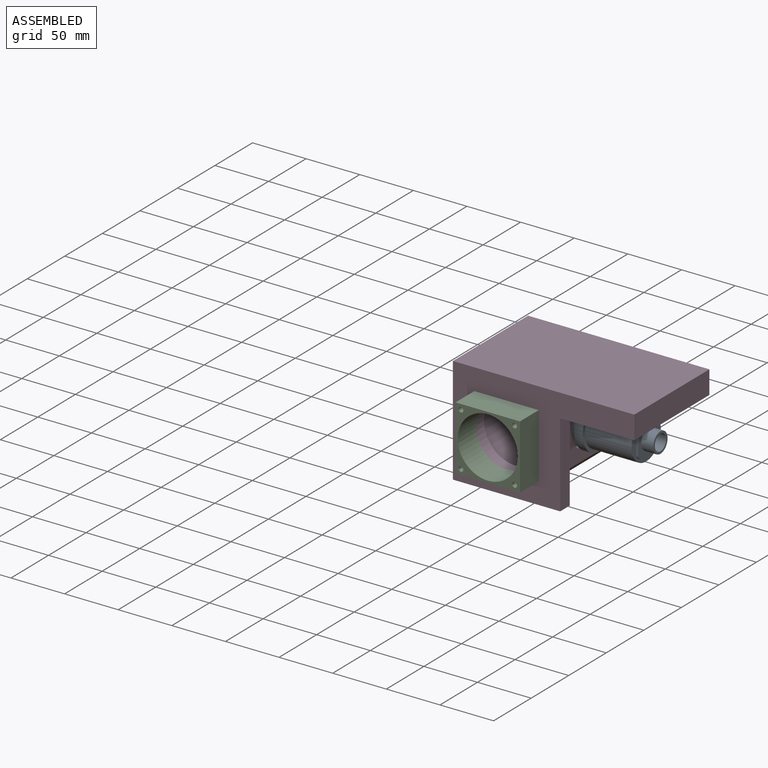
[diagram: assembled view]
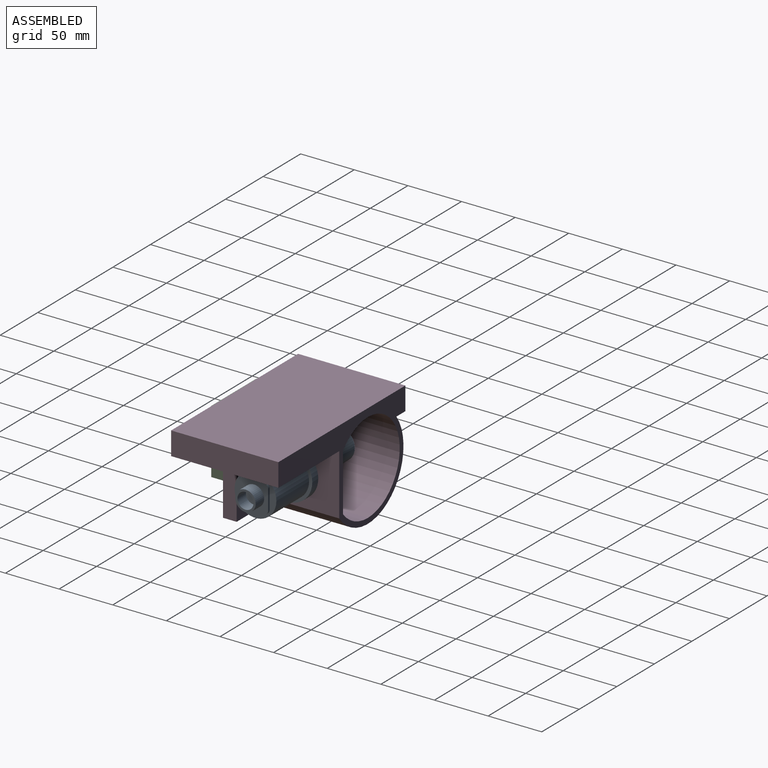
[diagram: assembled view, second angle]
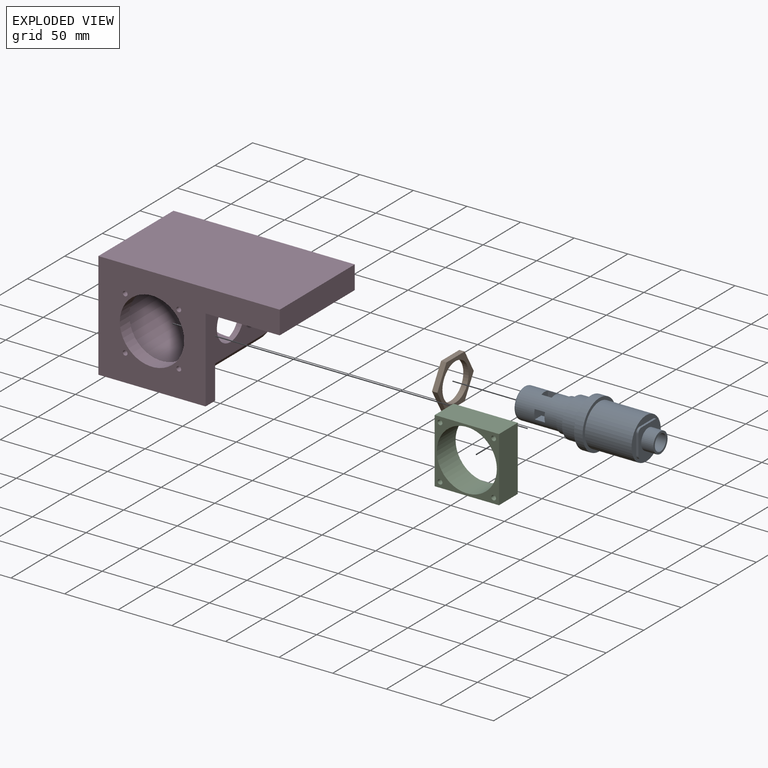
[diagram: exploded view]
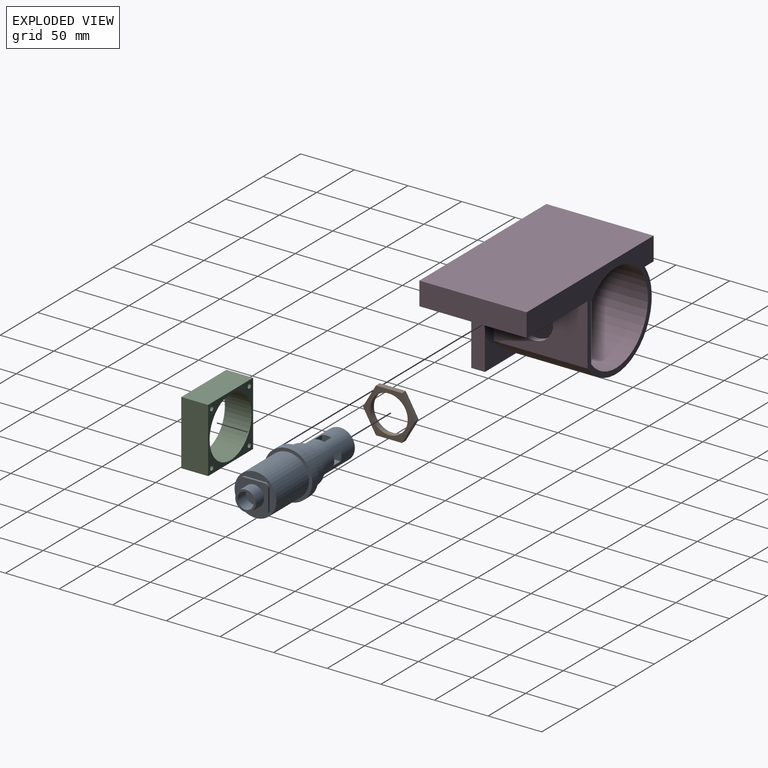
[diagram: exploded view, second angle]
ASSEMBLY  parts=4 mates=3
PART A: 35 faces, bbox 45x45x127.2 mm
  f0: plane 39x39mm, normal (0,0,-1), area 510.7mm2, adj f4,f22,f23,f24,f25,f26,f27,f28
  f1: plane 9.6x8.79mm, normal (0,1,0), area 84.3mm2, adj f3,f15,f17,f21
  f2: plane 9.6x8.79mm, normal (0,-1,0), area 84.3mm2, adj f3,f15,f17,f18
  f3: cylinder r=13.9mm len=38.5mm, axis (0,0,-1), area 3018.6mm2, adj f1,f2,f11,f13,f14,f15,f16,f17
  f4: cylinder r=19.5mm len=43.5mm, axis (0,0,1), area 5329.7mm2, adj f0,f7
  f5: cylinder r=22.5mm len=45mm, axis (0,0,-1), area 1131mm2, adj f6,f7
  f6: plane 45x45mm, normal (0,0,1), area 572.6mm2, adj f5,f8
  f7: plane 45x45mm, normal (0,0,-1), area 395.8mm2, adj f4,f5
  f8: cylinder r=18mm len=36mm, axis (0,0,-1), area 1617.3mm2, adj f6,f9
  f9: plane 36x36mm, normal (0,0,1), area 311mm2, adj f8,f10
  f10: cylinder r=15mm len=30mm, axis (0,0,-1), area 716.3mm2, adj f9,f11
  f11: plane 30x30mm, normal (0,0,1), area 99.9mm2, adj f3,f10
  f12: plane 23.8x23.8mm, normal (0,0,1), area 444.9mm2, adj f13
  f13: torus R=11.9mm, axis (0,0,1), area 260mm2, adj f3,f12
  f14: plane 9.6x8.79mm, normal (0,1,0), area 84.3mm2, adj f3,f15,f17,f20
  f15: plane 27.8x27.8mm, normal (0,0,1), area 403.5mm2, adj f1,f2,f3,f14,f16,f18,f19,f20
  f16: plane 9.6x8.79mm, normal (0,-1,0), area 84.3mm2, adj f3,f15,f17,f19
  f17: plane 27.8x27.8mm, normal (0,0,-1), area 403.5mm2, adj f1,f2,f3,f14,f16,f18,f19,f20
  f18: plane 9.6x8.79mm, normal (1,0,0), area 84.3mm2, adj f2,f3,f15,f17
  f19: plane 9.6x8.79mm, normal (-1,0,0), area 84.3mm2, adj f3,f15,f16,f17
  f20: plane 9.6x8.79mm, normal (-1,0,0), area 84.3mm2, adj f3,f14,f15,f17
  f21: plane 9.6x8.79mm, normal (1,0,0), area 84.3mm2, adj f1,f3,f15,f17
  f22: plane 18.6x2mm, normal (0,1,0), area 37.2mm2, adj f0,f23,f29,f30
  f23: cylinder r=3.9mm len=3.9mm, axis (0,0,1), area 12.3mm2, adj f0,f22,f24,f30
  f24: plane 18.6x2mm, normal (1,0,0), area 37.2mm2, adj f0,f23,f25,f30
  f25: cylinder r=3.9mm len=3.9mm, axis (0,0,1), area 12.3mm2, adj f0,f24,f26,f30
  f26: plane 18.6x2mm, normal (0,-1,0), area 37.2mm2, adj f0,f25,f27,f30
  f27: cylinder r=3.9mm len=3.9mm, axis (0,0,1), area 12.3mm2, adj f0,f26,f28,f30
  f28: plane 18.6x2mm, normal (-1,0,0), area 37.2mm2, adj f0,f27,f29,f30
  f29: cylinder r=3.9mm len=3.9mm, axis (0,0,1), area 12.3mm2, adj f0,f22,f28,f30
  f30: plane 26.4x26.4mm, normal (0,0,-1), area 400.4mm2, adj f22,f23,f24,f25,f26,f27,f28,f29
  f31: cylinder r=7.5mm len=15mm, axis (0,0,1), area 532.5mm2, adj f33,f34
  f32: cylinder r=9.5mm len=19mm, axis (0,0,1), area 674.5mm2, adj f30,f33
  f33: plane 19x19mm, normal (0,0,-1), area 106.8mm2, adj f31,f32
  f34: plane 15x15mm, normal (0,0,-1), area 176.7mm2, adj f31
PART B: 9 faces, bbox 42x5x48.5 mm
  f0: plane 21x12.12mm, normal (0.5,0,0.87), area 121.2mm2, adj f1,f5,f7,f8
  f1: plane 21x12.12mm, normal (-0.5,0,0.87), area 121.2mm2, adj f0,f2,f7,f8
  f2: plane 24.25x5mm, normal (-1,0,0), area 121.2mm2, adj f1,f3,f7,f8
  f3: plane 21x12.12mm, normal (-0.5,0,-0.87), area 121.2mm2, adj f2,f4,f7,f8
  f4: plane 21x12.12mm, normal (0.5,0,-0.87), area 121.2mm2, adj f3,f5,f7,f8
  f5: plane 24.25x5mm, normal (1,0,0), area 121.2mm2, adj f0,f4,f7,f8
  f6: cylinder r=17.5mm len=35mm, axis (0,1,0), area 549.8mm2, adj f7,f8
  f7: plane 48.5x42mm, normal (0,-1,0), area 565.6mm2, adj f0,f1,f2,f3,f4,f5,f6
  f8: plane 48.5x42mm, normal (0,1,0), area 565.6mm2, adj f0,f1,f2,f3,f4,f5,f6
PART C: 11 faces, bbox 60x25x60 mm
  f0: plane 60x25mm, normal (0,0,-1), area 1500mm2, adj f1,f3,f9,f10
  f1: plane 60x25mm, normal (1,0,0), area 1500mm2, adj f0,f2,f9,f10
  f2: plane 60x25mm, normal (0,0,1), area 1500mm2, adj f1,f3,f9,f10
  f3: plane 60x25mm, normal (-1,0,0), area 1500mm2, adj f0,f2,f9,f10
  f4: cylinder r=2.2mm len=25mm, axis (0,1,0), area 345.6mm2, adj f9,f10
  f5: cylinder r=2.2mm len=25mm, axis (0,1,0), area 345.6mm2, adj f9,f10
  f6: cylinder r=2.2mm len=25mm, axis (0,1,0), area 345.6mm2, adj f9,f10
  f7: cylinder r=28mm len=56mm, axis (0,1,0), area 4398.2mm2, adj f9,f10
  f8: cylinder r=2.2mm len=25mm, axis (0,1,0), area 345.6mm2, adj f9,f10
  f9: plane 60x60mm, normal (0,-1,0), area 1076.2mm2, adj f0,f1,f2,f3,f4,f5,f6,f7
  f10: plane 60x60mm, normal (0,1,0), area 1076.2mm2, adj f0,f1,f2,f3,f4,f5,f6,f7
PART D: 22 faces, bbox 169.1x100x100 mm
  f0: cylinder r=47.5mm len=87.3mm, axis (0,0,-1), area 13027.4mm2, adj f1,f9,f10,f14
  f1: plane 87.3x11.9mm, normal (0,1,0), area 1038.9mm2, adj f0,f2,f10,f14
  f2: plane 100x100mm, normal (-1,0,0), area 3158.6mm2, adj f1,f3,f10,f11,f13,f14
  f3: plane 169.1x100mm, normal (0,-1,0), area 16910mm2, adj f2,f4,f10,f11
  f4: plane 100x21.63mm, normal (1,0,0), area 2163.4mm2, adj f3,f5,f10,f11
  f5: plane 100x69.1mm, normal (0,1,0), area 6910mm2, adj f4,f6,f10,f11,f12
  f6: plane 87.3x11.9mm, normal (0,1,0), area 1038.9mm2, adj f5,f9,f10,f14
  f7: cylinder r=42.5mm len=87.3mm, axis (0,0,-1), area 18258.8mm2, adj f8,f10,f20
  f8: plane 87.3x53.51mm, normal (-1,0,0), area 3653.9mm2, adj f7,f10,f20,f21
  f9: plane 87.3x56.73mm, normal (1,0,0), area 3934.9mm2, adj f0,f6,f10,f14,f21
  f10: plane 169.1x97.5mm, normal (0,0,1), area 4036mm2, adj f0,f1,f2,f3,f4,f5,f6,f7
  f11: plane 169.1x100mm, normal (0,0,-1), area 8606.7mm2, adj f2,f3,f4,f5,f12,f13,f15,f16
  f12: plane 78.37x12.7mm, normal (1,0,0), area 995.2mm2, adj f5,f11,f13,f14
  f13: plane 100x12.7mm, normal (0,1,0), area 1270mm2, adj f2,f11,f12,f14
  f14: plane 100x78.37mm, normal (0,0,1), area 2131mm2, adj f0,f1,f2,f6,f9,f12,f13
  f15: cylinder r=2.2mm len=12.7mm, axis (0,0,-1), area 175.6mm2, adj f11,f20
  f16: cylinder r=2.2mm len=12.7mm, axis (0,0,-1), area 175.6mm2, adj f11,f20
  f17: cylinder r=2.2mm len=12.7mm, axis (0,0,-1), area 175.6mm2, adj f11,f20
  f18: cylinder r=30mm len=60mm, axis (0,0,-1), area 2393.9mm2, adj f11,f20
  f19: cylinder r=2.2mm len=12.7mm, axis (0,0,-1), area 175.6mm2, adj f11,f20
  f20: plane 85x75.52mm, normal (0,0,1), area 2439.7mm2, adj f7,f8,f15,f16,f17,f18,f19
  f21: cylinder r=18mm len=36mm, axis (1,0,0), area 574.5mm2, adj f8,f9
PLACE A rot(axis=(0.58,-0.58,-0.58),120deg) t=(274.99,-358.98,500.28)mm
PLACE B rot(axis=(-0.58,-0.58,-0.58),120deg) t=(261.84,-358.98,500.28)mm
PLACE C t=(228.89,-416.97,500.28)mm
PLACE D rot(axis=(-1,0,0),90deg) t=(228.89,-416.97,500.28)mm
MATE fastened B.f6 <-> A.f3  axis (1,0,0) through (261.84,-358.98,500.28)mm
MATE fastened A.f3 <-> D.f9  axis (-1,0,0) through (266.99,-358.98,500.28)mm
MATE fastened D.f17 <-> C.f5  axis (0,-1,0) through (253.89,-416.97,475.28)mm
